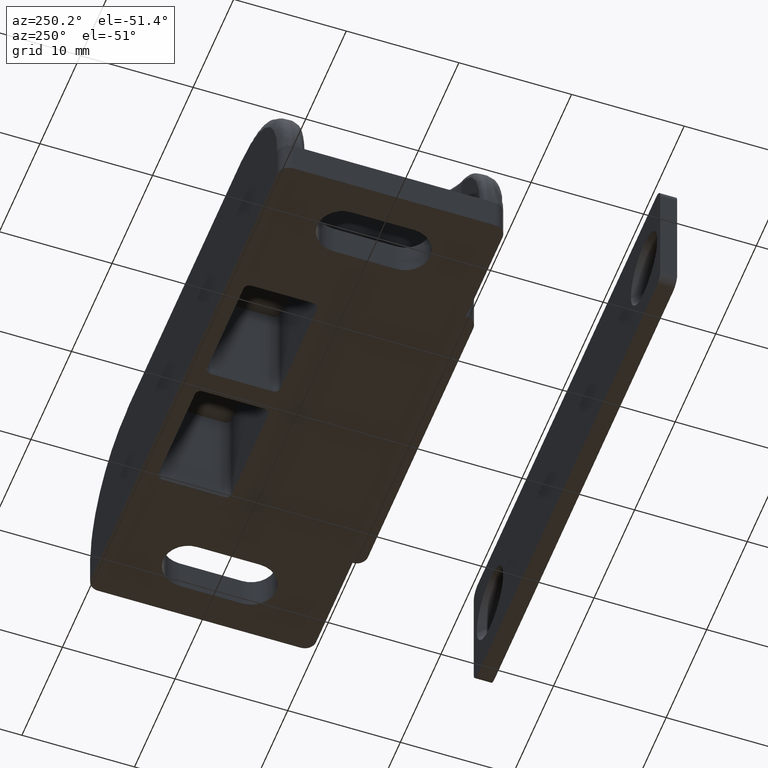
[diagram: clean part render]
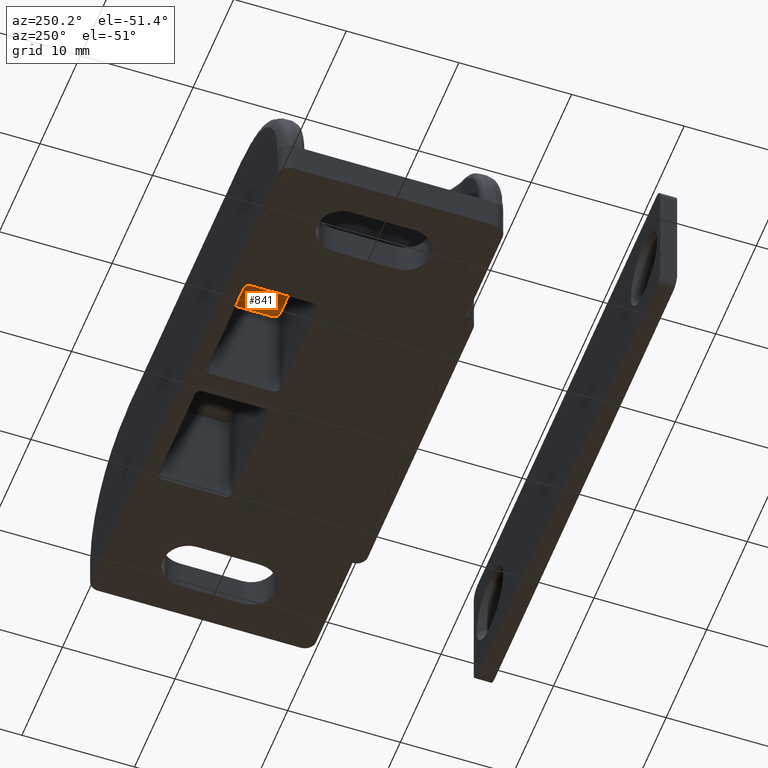
[diagram: same view with one face highlighted and labeled with its STEP entity id]
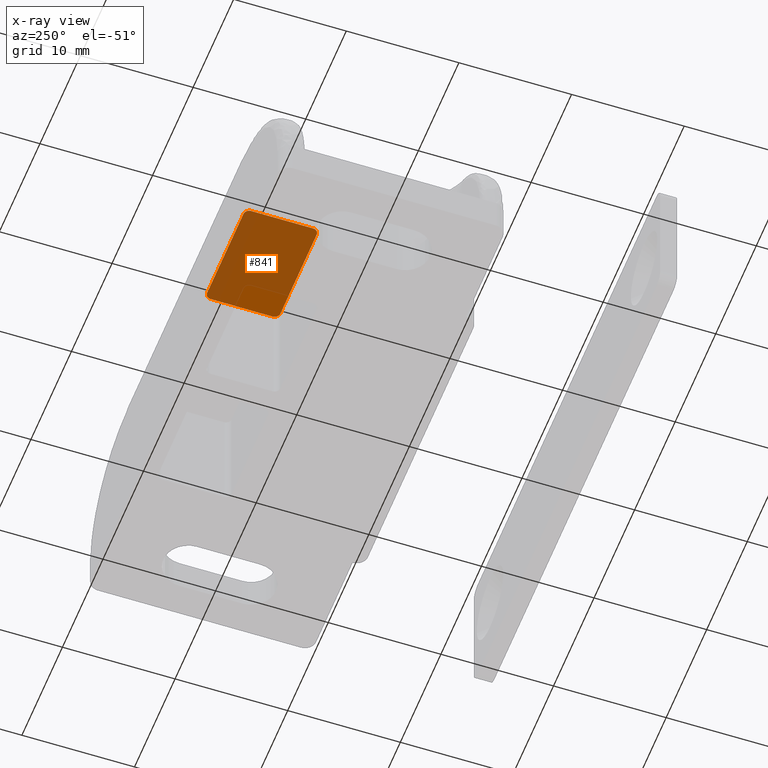
[diagram: x-ray of the same camera — body ghosted, the highlighted face saturated]
A machine part, auxiliary view. The second image highlights one B-rep face of the part: STEP entity #841.
The next image is the same camera in x-ray: the body ghosted, the highlighted face saturated — about 86% of this face is hidden behind the body in this view.
In plain terms, the highlighted face is a freeform B-spline surface patch.
Its self-contained STEP definition (entity closure, byte-faithful):
#751=CARTESIAN_POINT('',(-11.499499980654679,1.675325012554484,10.0));
#752=CARTESIAN_POINT('',(-0.500499751172145,1.675325012554484,10.0));
#753=CARTESIAN_POINT('',(-11.499499980654679,8.824675161741121,10.0));
#754=CARTESIAN_POINT('',(-0.500499751172145,8.824675161741121,10.0));
#755=B_SPLINE_SURFACE_WITH_KNOTS('',1,1,((#751,#753),(#752,#754)),.UNSPECIFIED.,.F.,.F.,.U.,(2,2),(2,2),(0.0,10.999000229482530),(0.0,7.149350149186637),.UNSPECIFIED.);
#756=CARTESIAN_POINT('',(-1.000000000012264,2.499999999996120,10.0));
#757=VERTEX_POINT('',#756);
#758=CARTESIAN_POINT('',(-1.500000000010330,1.999999999994005,10.0));
#759=VERTEX_POINT('',#758);
#760=CARTESIAN_POINT('',(-1.000000000012264,2.499999999996120,10.0));
#761=CARTESIAN_POINT('',(-1.000000000012265,1.999999999995940,10.0));
#762=CARTESIAN_POINT('',(-1.500000000010330,1.999999999994005,10.0));
#770=(BOUNDED_CURVE()B_SPLINE_CURVE(2,(#760,#761,#762),.UNSPECIFIED.,.F.,.U.)CURVE()GEOMETRIC_REPRESENTATION_ITEM()QUASI_UNIFORM_CURVE()RATIONAL_B_SPLINE_CURVE((1.0,0.707106781187916,1.0))REPRESENTATION_ITEM(''));
#771=EDGE_CURVE('',#757,#759,#770,.T.);
#772=ORIENTED_EDGE('',*,*,#771,.T.);
#773=CARTESIAN_POINT('',(-10.500000000010321,1.999999999958020,10.0));
#774=VERTEX_POINT('',#773);
#775=CARTESIAN_POINT('',(-1.500000000010330,1.999999999994005,10.0));
#776=CARTESIAN_POINT('',(-10.500000000010321,1.999999999958020,10.0));
#777=QUASI_UNIFORM_CURVE('',1,(#775,#776),.UNSPECIFIED.,.F.,.U.);
#778=EDGE_CURVE('',#759,#774,#777,.T.);
#779=ORIENTED_EDGE('',*,*,#778,.T.);
#780=CARTESIAN_POINT('',(-11.000000000012280,2.499999999957965,10.0));
#781=VERTEX_POINT('',#780);
#782=CARTESIAN_POINT('',(-10.500000000010321,1.999999999958020,10.0));
#783=CARTESIAN_POINT('',(-10.549089404810880,1.999977846236128,10.000000000000011));
#784=CARTESIAN_POINT('',(-10.643164671405900,2.013967291676665,10.0));
#785=CARTESIAN_POINT('',(-10.759512769027889,2.067258406189669,10.000000000000011));
#786=CARTESIAN_POINT('',(-10.856726957035120,2.143129852818505,9.999999999999984));
#787=CARTESIAN_POINT('',(-10.926367364387930,2.230143176000592,10.000000000000011));
#788=CARTESIAN_POINT('',(-10.984359213002611,2.352765623566782,9.999999999999998));
#789=CARTESIAN_POINT('',(-11.000039445550520,2.442724830159464,10.0));
#790=CARTESIAN_POINT('',(-11.000000000012280,2.499999999957965,10.0));
#791=B_SPLINE_CURVE_WITH_KNOTS('',3,(#782,#783,#784,#785,#786,#787,#788,#789,#790),.UNSPECIFIED.,.F.,.U.,(4,1,1,1,1,1,4),(0.000000123591676,0.147263352927433,0.282268418481737,0.380455198754355,0.515429622536935,0.613609919341552,0.785417872192286),.UNSPECIFIED.);
#792=EDGE_CURVE('',#774,#781,#791,.T.);
#793=ORIENTED_EDGE('',*,*,#792,.T.);
#794=CARTESIAN_POINT('',(-11.000000000035460,7.999999999955860,10.0));
#795=VERTEX_POINT('',#794);
#796=CARTESIAN_POINT('',(-11.000000000012280,2.499999999957965,10.0));
#797=CARTESIAN_POINT('',(-11.000000000035460,7.999999999955860,10.0));
#798=QUASI_UNIFORM_CURVE('',1,(#796,#797),.UNSPECIFIED.,.F.,.U.);
#799=EDGE_CURVE('',#781,#795,#798,.T.);
#800=ORIENTED_EDGE('',*,*,#799,.T.);
#801=CARTESIAN_POINT('',(-10.500000000035460,8.499999999957970,10.0));
#802=VERTEX_POINT('',#801);
#803=CARTESIAN_POINT('',(-11.000000000035460,7.999999999955860,10.0));
#804=CARTESIAN_POINT('',(-11.000052675191910,8.061368650314632,10.000000000000020));
#805=CARTESIAN_POINT('',(-10.982453671355080,8.155410998895208,9.999999999999975));
#806=CARTESIAN_POINT('',(-10.919607886115230,8.280238795200059,10.000000000000020));
#807=CARTESIAN_POINT('',(-10.834581834239840,8.381332551800753,10.000000000000020));
#808=CARTESIAN_POINT('',(-10.692203927019330,8.473972577662570,9.999999999999996));
#809=CARTESIAN_POINT('',(-10.569553379200659,8.500084852655890,10.000000000000011));
#810=CARTESIAN_POINT('',(-10.500000000035460,8.499999999957970,10.0));
#811=B_SPLINE_CURVE_WITH_KNOTS('',3,(#803,#804,#805,#806,#807,#808,#809,#810),.UNSPECIFIED.,.F.,.U.,(4,1,1,1,1,4),(0.000000123591916,0.184081763443753,0.282268418482125,0.417241488719339,0.576790637743888,0.785417872192440),.UNSPECIFIED.);
#812=EDGE_CURVE('',#795,#802,#811,.T.);
#813=ORIENTED_EDGE('',*,*,#812,.T.);
#814=CARTESIAN_POINT('',(-1.500000000037615,8.499999999994000,10.0));
#815=VERTEX_POINT('',#814);
#816=CARTESIAN_POINT('',(-10.500000000035460,8.499999999957970,10.0));
#817=CARTESIAN_POINT('',(-1.500000000037615,8.499999999994000,10.0));
#818=QUASI_UNIFORM_CURVE('',1,(#816,#817),.UNSPECIFIED.,.F.,.U.);
#819=EDGE_CURVE('',#802,#815,#818,.T.);
#820=ORIENTED_EDGE('',*,*,#819,.T.);
#821=CARTESIAN_POINT('',(-1.000000000035456,7.999999999994000,10.0));
#822=VERTEX_POINT('',#821);
#823=CARTESIAN_POINT('',(-1.500000000037615,8.499999999994000,10.0));
#824=CARTESIAN_POINT('',(-1.430438121538852,8.500100179681549,9.999999999999998));
#825=CARTESIAN_POINT('',(-1.328258102600213,8.478297982456658,10.000000000000011));
#826=CARTESIAN_POINT('',(-1.195921359897042,8.403331271419267,9.999999999999998));
#827=CARTESIAN_POINT('',(-1.109080090094921,8.320647710399230,10.0));
#828=CARTESIAN_POINT('',(-1.024859576157247,8.183991181889731,9.999999999999998));
#829=CARTESIAN_POINT('',(-0.999882804706874,8.073658217783491,9.999999999999996));
#830=CARTESIAN_POINT('',(-1.000000000035456,7.999999999994000,10.0));
#831=B_SPLINE_CURVE_WITH_KNOTS('',3,(#823,#824,#825,#826,#827,#828,#829,#830),.UNSPECIFIED.,.F.,.U.,(4,1,1,1,1,4),(0.000000123591654,0.208627358040265,0.306811475665365,0.454068905668542,0.564516950742718,0.785417872192500),.UNSPECIFIED.);
#832=EDGE_CURVE('',#815,#822,#831,.T.);
#833=ORIENTED_EDGE('',*,*,#832,.T.);
#834=CARTESIAN_POINT('',(-1.000000000035456,7.999999999994000,10.0));
#835=CARTESIAN_POINT('',(-1.000000000012264,2.499999999996120,10.0));
#836=QUASI_UNIFORM_CURVE('',1,(#834,#835),.UNSPECIFIED.,.F.,.U.);
#837=EDGE_CURVE('',#822,#757,#836,.T.);
#838=ORIENTED_EDGE('',*,*,#837,.T.);
#839=EDGE_LOOP('',(#772,#779,#793,#800,#813,#820,#833,#838));
#840=FACE_OUTER_BOUND('',#839,.T.);
#841=ADVANCED_FACE('',(#840),#755,.F.);